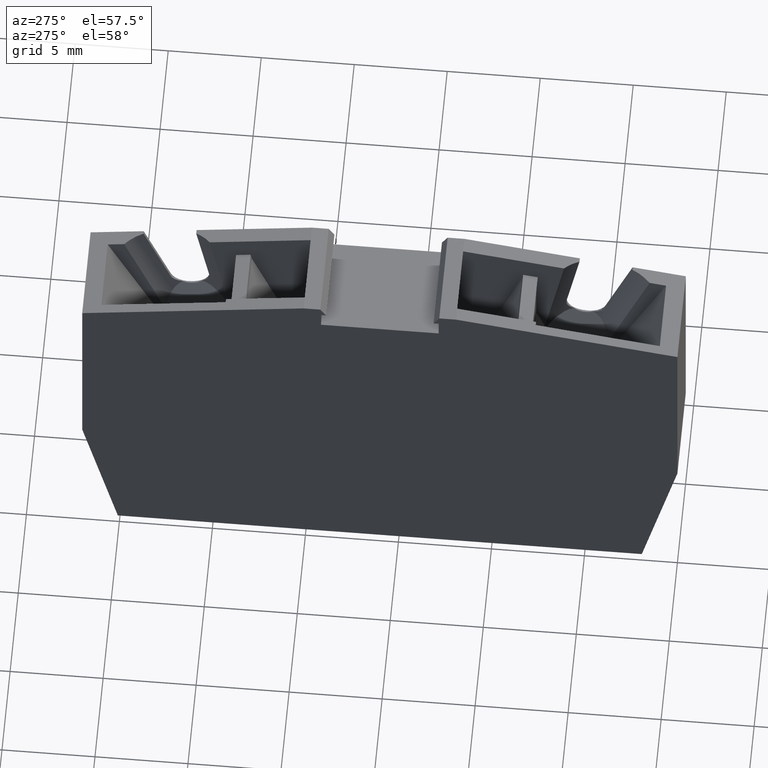
[diagram: clean part render]
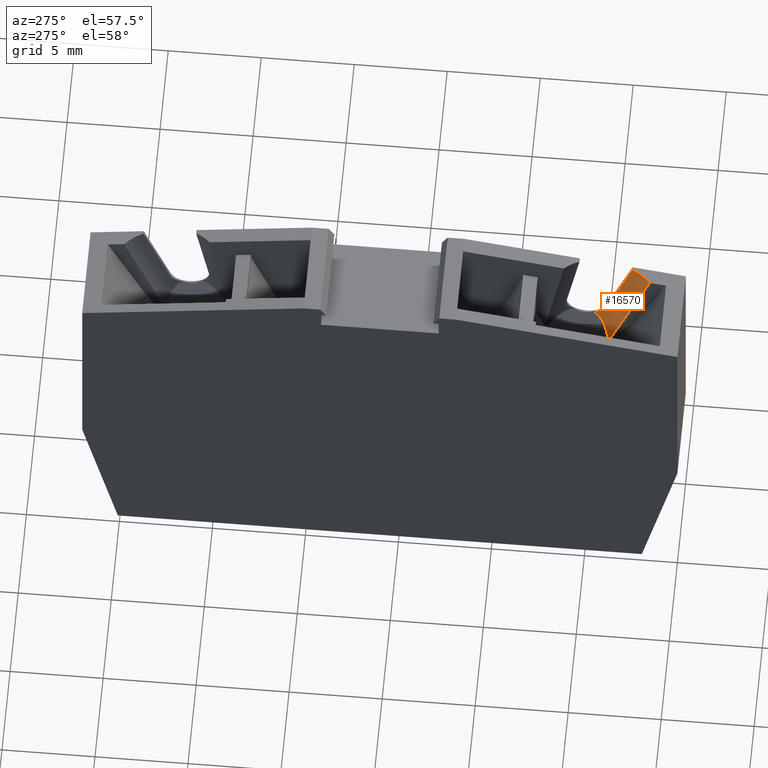
[diagram: same view with one face highlighted and labeled with its STEP entity id]
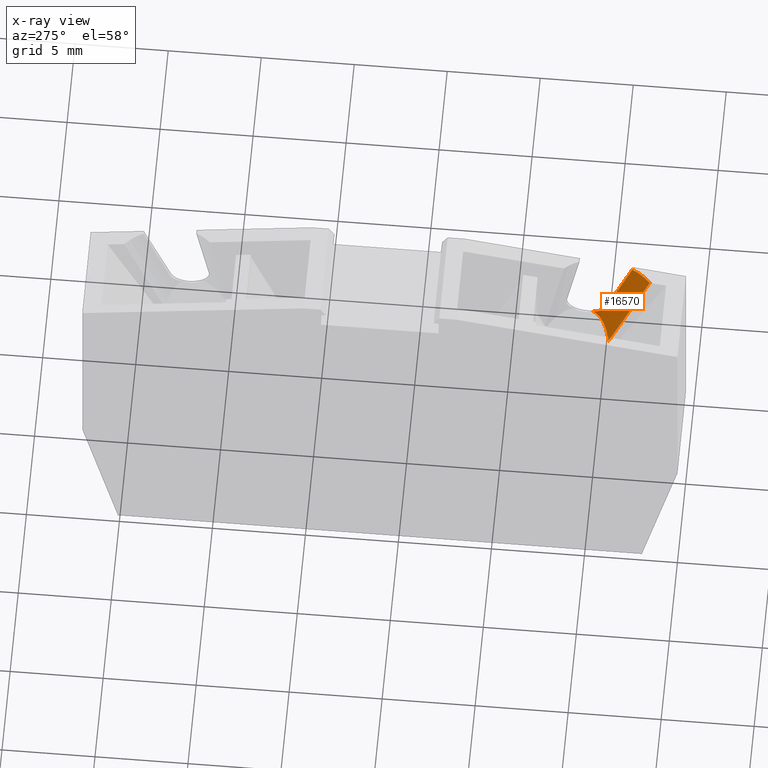
[diagram: x-ray of the same camera — body ghosted, the highlighted face saturated]
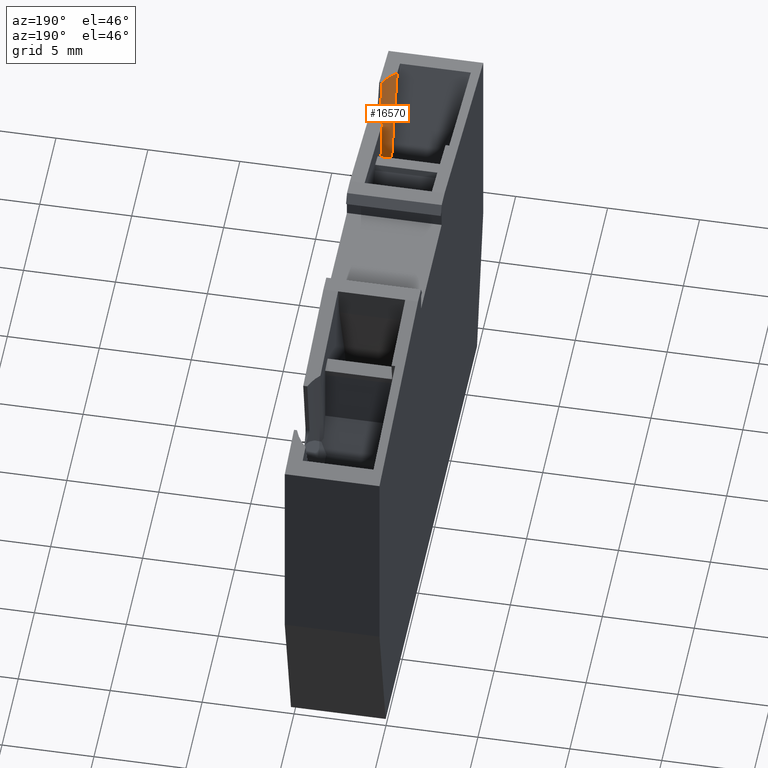
[diagram: same view with one face highlighted and labeled with its STEP entity id]
A machine part, auxiliary view. The second image highlights one B-rep face of the part: STEP entity #16570.
The next image is the same camera in x-ray: the body ghosted, the highlighted face saturated — about 0% of this face is hidden behind the body in this view.
A second angle (auxiliary view) of the same face is appended — the face is thin or edge-on in the first view.
In plain terms, the highlighted cylindrical surface (partial cylindrical patch) has radius 2.6154 mm, axis along (-0, 0.342, -0.9397).
Its self-contained STEP definition (entity closure, byte-faithful):
#13000=CARTESIAN_POINT('',(-11.0216999677672,124.792459655152,
55.8499999999999));
#13010=VERTEX_POINT('',#13000);
#13040=CARTESIAN_POINT('',(-10.855063601676,122.887797275187,
57.665222820032));
#13050=DIRECTION('',(-0.996194698091746,-0.0871557427476545,
4.01808419017143E-15));
#13060=DIRECTION('',(0.0871557427476545,-0.996194698091746,
2.11714887101291E-14));
#13070=AXIS2_PLACEMENT_3D('',#13040,#13050,#13060);
#13080=ELLIPSE('',#13070,2.65574601904709,2.61539926958888);
#13090=CARTESIAN_POINT('',(-10.934440828583,123.795083130382,
55.2084248015004));
#13100=VERTEX_POINT('',#13090);
#13110=EDGE_CURVE('',#13010,#13100,#13080,.T.);
#13310=CARTESIAN_POINT('',(-6.79969013977098,122.429519481062,
54.5499999999999));
#13320=DIRECTION('',(1.26217744835362E-29,-1.57772181044202E-30,-1.));
#13330=DIRECTION('',(-1.,-8.88178419700118E-16,-1.10440526730942E-29));
#13340=AXIS2_PLACEMENT_3D('',#13310,#13320,#13330);
#13350=CYLINDRICAL_SURFACE('',#13340,1.);
#13360=CARTESIAN_POINT('',(-11.442034653314,122.939150588024,
57.665222820032));
#13370=DIRECTION('',(0.996194698091746,-0.0871557427476572,
1.26217744835362E-29));
#13380=DIRECTION('',(0.0206462217506306,0.235987394464119,
-0.971536763679821));
#13390=AXIS2_PLACEMENT_3D('',#13360,#13370,#13380);
#13400=CYLINDRICAL_SURFACE('',#13390,2.61539926958888);
#13410=CARTESIAN_POINT('',(-5.94843651069306,122.954273956028,
55.0968748590198));
#13420=CARTESIAN_POINT('',(-5.95860572555028,122.970770396678,
55.0998644418388));
#13430=CARTESIAN_POINT('',(-5.96925505334229,122.986971380995,
55.1029359415615));
#13440=CARTESIAN_POINT('',(-5.98035812629554,123.00283880893,
55.1060640284476));
#13450=CARTESIAN_POINT('',(-5.99146120588607,123.01870624635,
55.1091921172037));
#13460=CARTESIAN_POINT('',(-6.00301778237694,123.034239784667,
55.1123766882722));
#13470=CARTESIAN_POINT('',(-6.01499762512186,123.049404678061,
55.1155914312032));
#13480=CARTESIAN_POINT('',(-6.02697749803196,123.064569609639,
55.1188061822289));
#13490=CARTESIAN_POINT('',(-6.03938037052898,123.079365591762,
55.1220509996854));
#13500=CARTESIAN_POINT('',(-6.05217308310167,123.093762094863,
55.1252993639969));
#13510=CARTESIAN_POINT('',(-6.0649658534969,123.108158663035,
55.1285477429908));
#13520=CARTESIAN_POINT('',(-6.07814818403127,123.122155489159,
55.1317995676892));
#13530=CARTESIAN_POINT('',(-6.0916851621606,123.135726923446,
55.1350288890367));
#13540=CARTESIAN_POINT('',(-6.10521136749873,123.149287557522,
55.1382556404751));
#13550=CARTESIAN_POINT('',(-6.11916153167818,123.162493969914,
55.141476726095));
#13560=CARTESIAN_POINT('',(-6.13352258490492,123.17532159211,
55.1446685884933));
#13570=CARTESIAN_POINT('',(-6.14788255258494,123.188148244671,
55.1478602096199));
#13580=CARTESIAN_POINT('',(-6.16264892106552,123.200591717722,
55.1510215145502));
#13590=CARTESIAN_POINT('',(-6.17779145694444,123.212617194185,
55.1541257089954));
#13600=CARTESIAN_POINT('',(-6.19293394684103,123.224642634132,
55.1572298940143));
#13610=CARTESIAN_POINT('',(-6.20845228477379,123.236249791552,
55.1602768545305));
#13620=CARTESIAN_POINT('',(-6.22431160227622,123.247406721817,
55.1632402605094));
#13630=CARTESIAN_POINT('',(-6.24017090426303,123.258563641168,
55.1662036635892));
#13640=CARTESIAN_POINT('',(-6.25637081920287,123.269270062201,
55.1690833975143));
#13650=CARTESIAN_POINT('',(-6.27287272227893,123.279497956452,
55.1718544918905));
#13660=CARTESIAN_POINT('',(-6.28937464437505,123.289725862492,
55.1746255894606));
#13670=CARTESIAN_POINT('',(-6.30617814367667,123.299474992957,
55.1772879385872));
#13680=CARTESIAN_POINT('',(-6.32324199032813,123.308722052084,
55.1798187822583));
#13690=CARTESIAN_POINT('',(-6.34030589677664,123.317969143617,
55.1823496347984));
#13700=CARTESIAN_POINT('',(-6.35762970223993,123.326713948058,
55.1847488859965));
#13710=CARTESIAN_POINT('',(-6.37517105990665,123.334938472928,
55.1869967401051));
#13720=CARTESIAN_POINT('',(-6.39271614089351,123.343164743531,
55.1892450713422));
#13730=CARTESIAN_POINT('',(-6.41046229820168,123.350863863842,
55.1913401213135));
#13740=CARTESIAN_POINT('',(-6.4284138897099,123.358041934286,
55.1932706038425));
#13750=CARTESIAN_POINT('',(-6.44638211633154,123.365226656397,
55.1952028752823));
#13760=CARTESIAN_POINT('',(-6.4646263560328,123.371916240856,
55.1969774891388));
#13770=CARTESIAN_POINT('',(-6.483102460291,123.37808273209,
55.1985752167271));
#13780=CARTESIAN_POINT('',(-6.50157843787133,123.384249181046,
55.2001729333609));
#13790=CARTESIAN_POINT('',(-6.5202856493372,123.38989225634,
55.201593648308));
#13800=CARTESIAN_POINT('',(-6.53917376444431,123.394988909986,
55.2028217928995));
#13810=CARTESIAN_POINT('',(-6.55806181495494,123.400085546201,
55.2040499332908));
#13820=CARTESIAN_POINT('',(-6.57713004548568,123.404635528077,
55.2050854130954));
#13830=CARTESIAN_POINT('',(-6.59632397380343,123.408622234883,
55.2059172980171));
#13840=CARTESIAN_POINT('',(-6.61551790099949,123.412608941455,
55.2067491828902));
#13850=CARTESIAN_POINT('',(-6.63483674174589,123.416032205271,
55.2073774181007));
#13860=CARTESIAN_POINT('',(-6.65422416908604,123.418882736582,
55.2077963252245));
#13870=CARTESIAN_POINT('',(-6.67361166280926,123.421733277652,
55.2082152337826));
#13880=CARTESIAN_POINT('',(-6.69306693870976,123.424010997244,
55.2084248015004));
#13890=CARTESIAN_POINT('',(-6.71253439702332,123.425714179154,
55.2084248015004));
#13900=B_SPLINE_CURVE_WITH_KNOTS('',3,(#13410,#13420,#13430,#13440,
#13450,#13460,#13470,#13480,#13490,#13500,#13510,#13520,#13530,#13540,
#13550,#13560,#13570,#13580,#13590,#13600,#13610,#13620,#13630,#13640,
#13650,#13660,#13670,#13680,#13690,#13700,#13710,#13720,#13730,#13740,
#13750,#13760,#13770,#13780,#13790,#13800,#13810,#13820,#13830,#13840,
#13850,#13860,#13870,#13880,#13890),.UNSPECIFIED.,.F.,.F.,(4,3,3,3,3,3,3
,3,3,3,3,3,3,3,3,3,4),(0.,0.0588467576894494,0.117668511556125,
0.176360725564591,0.23482297957255,0.293234891538122,0.351895573414598,
0.410704381348301,0.469553509608826,0.528337366517141,0.586958729349372,
0.645344933796799,0.703839898187359,0.762567485752187,0.821412267435676,
0.88025413750353,0.938976092358921),.UNSPECIFIED.);
#13910=SURFACE_CURVE('',#13900,(#13350,#13400),.CURVE_3D.);
#13920=CARTESIAN_POINT('',(-5.94843651069959,122.954273956024,
55.0968748590187));
#13930=VERTEX_POINT('',#13920);
#13940=CARTESIAN_POINT('',(-6.71253439702333,123.425714179154,
55.2084248015004));
#13950=VERTEX_POINT('',#13940);
#13960=EDGE_CURVE('',#13930,#13950,#13910,.T.);
#16210=CARTESIAN_POINT('',(-11.3638633448434,123.832652732418,
55.2084248015004));
#16220=DIRECTION('',(0.996194698091746,-0.0871557427476572,
1.41994962939782E-29));
#16230=VECTOR('',#16220,1.);
#16240=LINE('',#16210,#16230);
#16250=EDGE_CURVE('',#13100,#13950,#16240,.T.);
#16370=ORIENTED_EDGE('',*,*,#13110,.T.);
#16380=CARTESIAN_POINT('',(-11.2779298680536,124.814876866684,
55.8499999999999));
#16390=DIRECTION('',(0.996194698091746,-0.0871557427476572,
1.41994962939782E-29));
#16400=VECTOR('',#16390,1.);
#16410=LINE('',#16380,#16400);
#16420=CARTESIAN_POINT('',(-4.54769928257136,124.226057987538,
55.8499999999999));
#16430=VERTEX_POINT('',#16420);
#16440=EDGE_CURVE('',#13010,#16430,#16410,.T.);
#16450=ORIENTED_EDGE('',*,*,#16440,.F.);
#16460=CARTESIAN_POINT('',(-0.708639860020538,122.000100222462,
57.665222820032));
#16470=DIRECTION('',(0.445511812751607,0.0389772330826502,
-0.894427190999915));
#16480=DIRECTION('',(0.891055517659301,-0.116198469117205,
0.438768709257773));
#16490=AXIS2_PLACEMENT_3D('',#16460,#16470,#16480);
#16500=ELLIPSE('',#16490,5.93842862956372,2.61539926958888);
#16510=EDGE_CURVE('',#13930,#16430,#16500,.T.);
#16520=ORIENTED_EDGE('',*,*,#16510,.T.);
#16530=ORIENTED_EDGE('',*,*,#13960,.F.);
#16540=ORIENTED_EDGE('',*,*,#16250,.T.);
#16550=EDGE_LOOP('',(#16540,#16530,#16520,#16450,#16370));
#16560=FACE_OUTER_BOUND('',#16550,.T.);
#16570=ADVANCED_FACE('',(#16560),#13400,.F.);